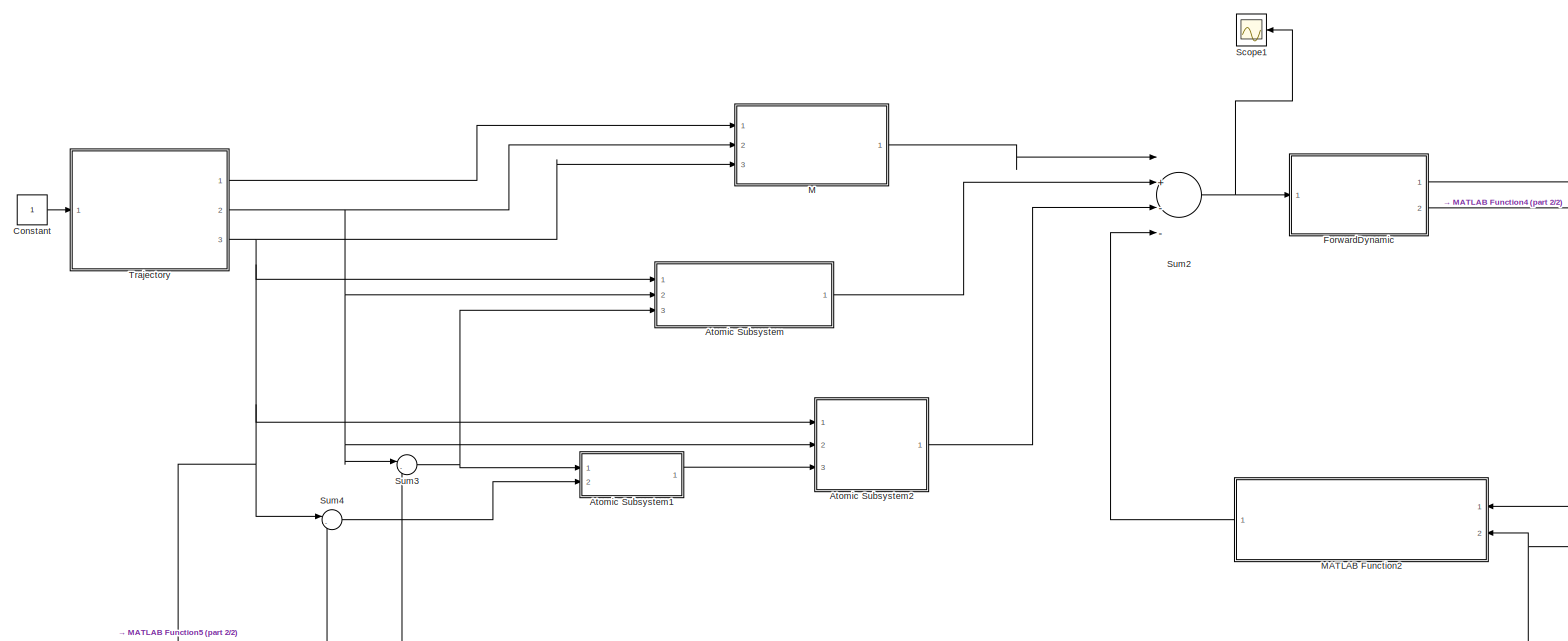
[diagram: root canvas - part 1/2, most of the canvas]
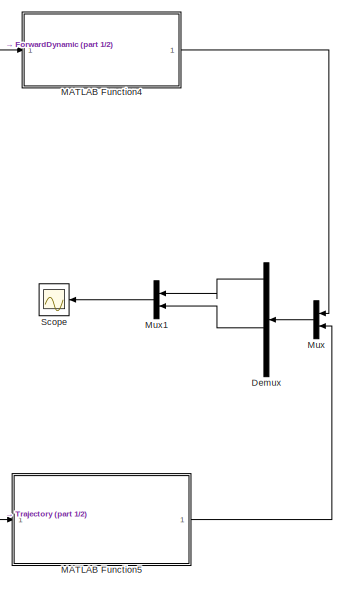
[diagram: root canvas - part 2/2, middle right region]
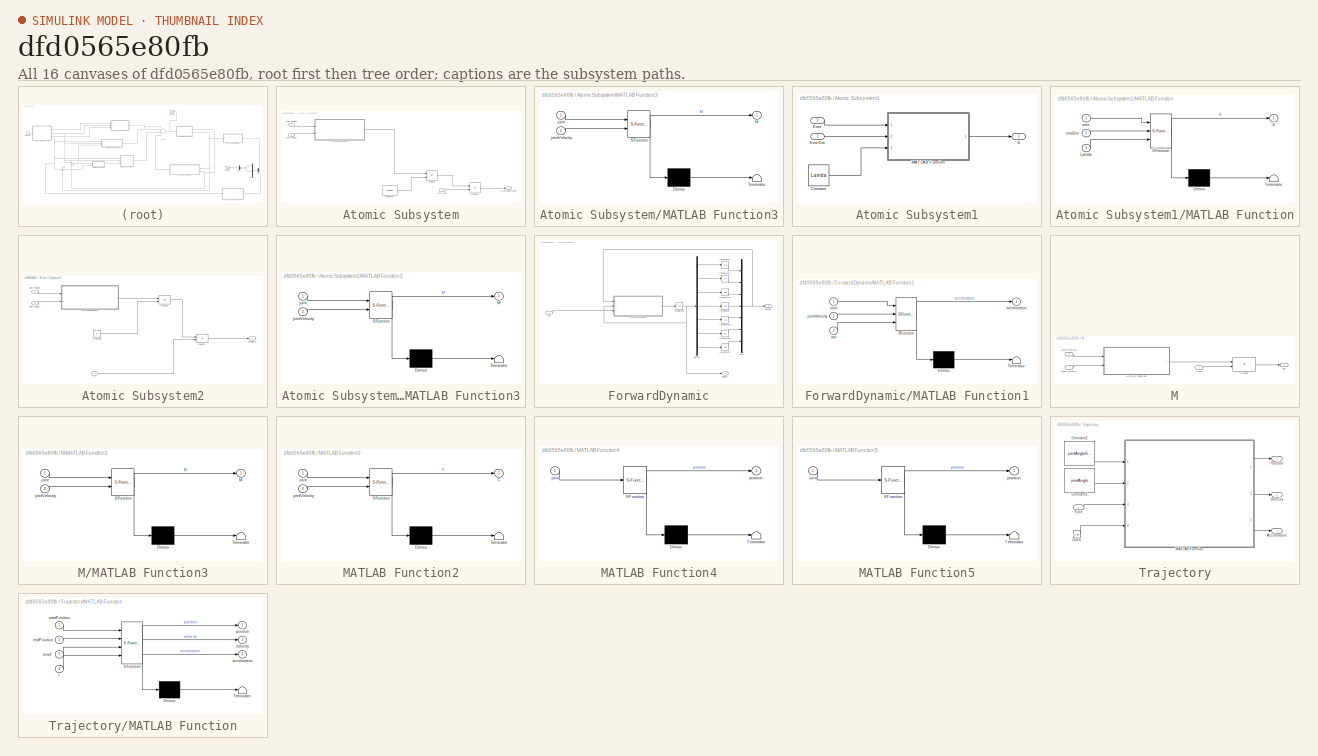
[diagram: thumbnail index - all 16 canvases of the model, root first then tree order]
MODEL slx_dfd0565e80fb
KIND model
CONFIG AbsTol = auto
CONFIG EnableMultiTasking = off
CONFIG FixedStep = 1
CONFIG MaxStep = auto
CONFIG MinStep = auto
CONFIG RelTol = 0.1
CONFIG SampleTimeConstraint = Unconstrained
CONFIG Solver = VariableStepAuto
CONFIG SolverName = VariableStepAuto
CONFIG StartTime = 0.0
CONFIG StopTime = 1
BLOCK [SubSystem] Atomic Subsystem
  Ports = [3, 1]
  RequestExecContextInheritance = off
  TreatAsAtomicUnit = on
BLOCK [Constant] Atomic Subsystem/Constant
  Value = Lamda
BLOCK [Inport] Atomic Subsystem/Error dot
  IconDisplay = Port number
  Port = 3
BLOCK [Inport] Atomic Subsystem/Joint Position
  IconDisplay = Port number
BLOCK [Inport] Atomic Subsystem/Joint Velocity
  IconDisplay = Port number
  Port = 2
BLOCK [SubSystem] Atomic Subsystem/MATLAB Function3
  ErrorFcn = Stateflow.Translate.translate
  PermitHierarchicalResolution = ExplicitOnly
  Ports = [2, 1]
  RequestExecContextInheritance = off
  SFBlockType = MATLAB Function
  TreatAsAtomicUnit = on
BLOCK [Demux] Atomic Subsystem/MATLAB Function3/ Demux 
  Outputs = 1
  Ports = [1, 1]
BLOCK [S-Function] Atomic Subsystem/MATLAB Function3/ SFunction 
  EnableBusSupport = on
  FunctionName = sf_sfun
  PortCounts = [2 2]
  Ports = [2, 2]
  SFcnIsStateOwnerBlock = off
  SFunctionDeploymentMode = off
  Tag = Stateflow S-Function BackStepping 2
BLOCK [Terminator] Atomic Subsystem/MATLAB Function3/ Terminator 
BLOCK [Outport] Atomic Subsystem/MATLAB Function3/M
  IconDisplay = Port number
BLOCK [Inport] Atomic Subsystem/MATLAB Function3/joint
  IconDisplay = Port number
BLOCK [Inport] Atomic Subsystem/MATLAB Function3/jointVelocity
  IconDisplay = Port number
  Port = 2
BLOCK [Outport] Atomic Subsystem/MLamdaErrorDot
  IconDisplay = Port number
BLOCK [Product] Atomic Subsystem/Product
  InputSameDT = off
  Multiplication = Matrix(*)
  OutDataTypeStr = Inherit: Inherit via internal rule
  Ports = [2, 1]
  RndMeth = Floor
  SaturateOnIntegerOverflow = off
BLOCK [Product] Atomic Subsystem/Product1
  InputSameDT = off
  Multiplication = Matrix(*)
  OutDataTypeStr = Inherit: Inherit via internal rule
  Ports = [2, 1]
  RndMeth = Floor
  SaturateOnIntegerOverflow = off
BLOCK [SubSystem] Atomic Subsystem1
  Ports = [2, 1]
  RequestExecContextInheritance = off
  TreatAsAtomicUnit = on
BLOCK [Constant] Atomic Subsystem1/Constant
  Value = Lamda
BLOCK [Inport] Atomic Subsystem1/Error
  IconDisplay = Port number
  Port = 2
BLOCK [Inport] Atomic Subsystem1/Error Dot
  IconDisplay = Port number
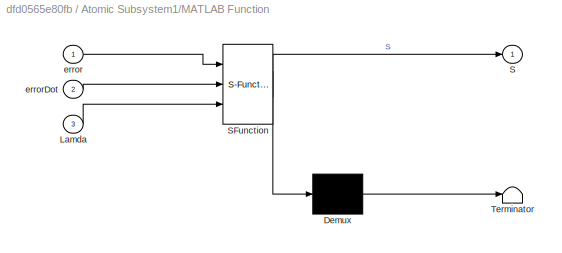
BLOCK [SubSystem] Atomic Subsystem1/MATLAB Function
  ErrorFcn = Stateflow.Translate.translate
  PermitHierarchicalResolution = ExplicitOnly
  Ports = [3, 1]
  RequestExecContextInheritance = off
  SFBlockType = MATLAB Function
  TreatAsAtomicUnit = on
BLOCK [Demux] Atomic Subsystem1/MATLAB Function/ Demux 
  Outputs = 1
  Ports = [1, 1]
BLOCK [S-Function] Atomic Subsystem1/MATLAB Function/ SFunction 
  EnableBusSupport = on
  FunctionName = sf_sfun
  PortCounts = [3 2]
  Ports = [3, 2]
  SFcnIsStateOwnerBlock = off
  SFunctionDeploymentMode = off
  Tag = Stateflow S-Function BackStepping 9
BLOCK [Terminator] Atomic Subsystem1/MATLAB Function/ Terminator 
BLOCK [Inport] Atomic Subsystem1/MATLAB Function/Lamda
  IconDisplay = Port number
  Port = 3
BLOCK [Outport] Atomic Subsystem1/MATLAB Function/S
  IconDisplay = Port number
BLOCK [Inport] Atomic Subsystem1/MATLAB Function/error
  IconDisplay = Port number
BLOCK [Inport] Atomic Subsystem1/MATLAB Function/errorDot
  IconDisplay = Port number
  Port = 2
BLOCK [Outport] Atomic Subsystem1/S
  IconDisplay = Port number
BLOCK [SubSystem] Atomic Subsystem2
  Ports = [3, 1]
  RequestExecContextInheritance = off
  TreatAsAtomicUnit = on
BLOCK [Constant] Atomic Subsystem2/Constant
  Value = K
BLOCK [Inport] Atomic Subsystem2/Joint Position
  IconDisplay = Port number
BLOCK [Inport] Atomic Subsystem2/Joint Velocity
  IconDisplay = Port number
  Port = 2
BLOCK [SubSystem] Atomic Subsystem2/MATLAB Function3
  ErrorFcn = Stateflow.Translate.translate
  PermitHierarchicalResolution = ExplicitOnly
  Ports = [2, 1]
  RequestExecContextInheritance = off
  SFBlockType = MATLAB Function
  TreatAsAtomicUnit = on
BLOCK [Demux] Atomic Subsystem2/MATLAB Function3/ Demux 
  Outputs = 1
  Ports = [1, 1]
BLOCK [S-Function] Atomic Subsystem2/MATLAB Function3/ SFunction 
  EnableBusSupport = on
  FunctionName = sf_sfun
  PortCounts = [2 2]
  Ports = [2, 2]
  SFcnIsStateOwnerBlock = off
  SFunctionDeploymentMode = off
  Tag = Stateflow S-Function BackStepping 5
BLOCK [Terminator] Atomic Subsystem2/MATLAB Function3/ Terminator 
BLOCK [Outport] Atomic Subsystem2/MATLAB Function3/M
  IconDisplay = Port number
BLOCK [Inport] Atomic Subsystem2/MATLAB Function3/joint
  IconDisplay = Port number
BLOCK [Inport] Atomic Subsystem2/MATLAB Function3/jointVelocity
  IconDisplay = Port number
  Port = 2
BLOCK [Outport] Atomic Subsystem2/MKsing(s)
  IconDisplay = Port number
BLOCK [Product] Atomic Subsystem2/Product
  InputSameDT = off
  Multiplication = Matrix(*)
  OutDataTypeStr = Inherit: Inherit via internal rule
  Ports = [2, 1]
  RndMeth = Floor
  SaturateOnIntegerOverflow = off
BLOCK [Product] Atomic Subsystem2/Product1
  InputSameDT = off
  Multiplication = Matrix(*)
  OutDataTypeStr = Inherit: Inherit via internal rule
  Ports = [2, 1]
  RndMeth = Floor
  SaturateOnIntegerOverflow = off
BLOCK [Inport] Atomic Subsystem2/S
  IconDisplay = Port number
  Port = 3
BLOCK [Constant] Constant
BLOCK [Demux] Demux
  DisplayOption = bar
  Outputs = 6
  Ports = [1, 6]
BLOCK [SubSystem] ForwardDynamic
  Ports = [1, 2]
  RequestExecContextInheritance = off
  TreatAsAtomicUnit = on
BLOCK [Demux] ForwardDynamic/Demux
  DisplayOption = bar
  Outputs = 7
  Ports = [1, 7]
BLOCK [Integrator] ForwardDynamic/Integrator
  Ports = [1, 1]
BLOCK [Integrator] ForwardDynamic/Integrator1
  InitialCondition = jointAngleStart(1)
  Ports = [1, 1]
BLOCK [Integrator] ForwardDynamic/Integrator2
  InitialCondition = jointAngleStart(2)
  Ports = [1, 1]
BLOCK [Integrator] ForwardDynamic/Integrator3
  InitialCondition = jointAngleStart(3)
  Ports = [1, 1]
BLOCK [Integrator] ForwardDynamic/Integrator4
  InitialCondition = jointAngleStart(4)
  Ports = [1, 1]
BLOCK [Integrator] ForwardDynamic/Integrator5
  InitialCondition = jointAngleStart(5)
  Ports = [1, 1]
BLOCK [Integrator] ForwardDynamic/Integrator6
  InitialCondition = jointAngleStart(6)
  Ports = [1, 1]
BLOCK [Integrator] ForwardDynamic/Integrator7
  InitialCondition = jointAngleStart(7)
  Ports = [1, 1]
BLOCK [SubSystem] ForwardDynamic/MATLAB Function1
  ErrorFcn = Stateflow.Translate.translate
  PermitHierarchicalResolution = ExplicitOnly
  Ports = [3, 1]
  RequestExecContextInheritance = off
  SFBlockType = MATLAB Function
  TreatAsAtomicUnit = on
BLOCK [Demux] ForwardDynamic/MATLAB Function1/ Demux 
  Outputs = 1
  Ports = [1, 1]
BLOCK [S-Function] ForwardDynamic/MATLAB Function1/ SFunction 
  EnableBusSupport = on
  FunctionName = sf_sfun
  PortCounts = [3 2]
  Ports = [3, 2]
  SFcnIsStateOwnerBlock = off
  SFunctionDeploymentMode = off
  Tag = Stateflow S-Function BackStepping 4
BLOCK [Terminator] ForwardDynamic/MATLAB Function1/ Terminator 
BLOCK [Outport] ForwardDynamic/MATLAB Function1/acceleration
  IconDisplay = Port number
BLOCK [Inport] ForwardDynamic/MATLAB Function1/joint
  IconDisplay = Port number
BLOCK [Inport] ForwardDynamic/MATLAB Function1/jointVelocity
  IconDisplay = Port number
  Port = 2
BLOCK [Inport] ForwardDynamic/MATLAB Function1/tau
  IconDisplay = Port number
  Port = 3
BLOCK [Mux] ForwardDynamic/Mux
  DisplayOption = bar
  Inputs = 7
  Ports = [7, 1]
BLOCK [Outport] ForwardDynamic/Position
  IconDisplay = Port number
  Port = 2
BLOCK [Inport] ForwardDynamic/Tau
  IconDisplay = Port number
BLOCK [Outport] ForwardDynamic/Velocity
  IconDisplay = Port number
BLOCK [SubSystem] M
  Ports = [3, 1]
  RequestExecContextInheritance = off
  TreatAsAtomicUnit = on
BLOCK [Inport] M/Accel 
  IconDisplay = Port number
BLOCK [Inport] M/Joint Position
  IconDisplay = Port number
  Port = 3
BLOCK [Inport] M/Joint Velocity
  IconDisplay = Port number
  Port = 2
BLOCK [SubSystem] M/MATLAB Function3
  ErrorFcn = Stateflow.Translate.translate
  PermitHierarchicalResolution = ExplicitOnly
  Ports = [2, 1]
  RequestExecContextInheritance = off
  SFBlockType = MATLAB Function
  TreatAsAtomicUnit = on
BLOCK [Demux] M/MATLAB Function3/ Demux 
  Outputs = 1
  Ports = [1, 1]
BLOCK [S-Function] M/MATLAB Function3/ SFunction 
  EnableBusSupport = on
  FunctionName = sf_sfun
  PortCounts = [2 2]
  Ports = [2, 2]
  SFcnIsStateOwnerBlock = off
  SFunctionDeploymentMode = off
  Tag = Stateflow S-Function BackStepping 1
BLOCK [Terminator] M/MATLAB Function3/ Terminator 
BLOCK [Outport] M/MATLAB Function3/M
  IconDisplay = Port number
BLOCK [Inport] M/MATLAB Function3/joint
  IconDisplay = Port number
BLOCK [Inport] M/MATLAB Function3/jointVelocity
  IconDisplay = Port number
  Port = 2
BLOCK [Product] M/Product
  InputSameDT = off
  Multiplication = Matrix(*)
  OutDataTypeStr = Inherit: Inherit via internal rule
  Ports = [2, 1]
  RndMeth = Floor
  SaturateOnIntegerOverflow = off
BLOCK [Outport] M/Tau
  IconDisplay = Port number
BLOCK [SubSystem] MATLAB Function2
  ErrorFcn = Stateflow.Translate.translate
  PermitHierarchicalResolution = ExplicitOnly
  Ports = [2, 1]
  RequestExecContextInheritance = off
  SFBlockType = MATLAB Function
  TreatAsAtomicUnit = on
BLOCK [Demux] MATLAB Function2/ Demux 
  Outputs = 1
  Ports = [1, 1]
BLOCK [S-Function] MATLAB Function2/ SFunction 
  EnableBusSupport = on
  FunctionName = sf_sfun
  PortCounts = [2 2]
  Ports = [2, 2]
  SFcnIsStateOwnerBlock = off
  SFunctionDeploymentMode = off
  Tag = Stateflow S-Function BackStepping 3
BLOCK [Terminator] MATLAB Function2/ Terminator 
BLOCK [Outport] MATLAB Function2/C
  IconDisplay = Port number
BLOCK [Inport] MATLAB Function2/joint
  IconDisplay = Port number
BLOCK [Inport] MATLAB Function2/jointVelocity
  IconDisplay = Port number
  Port = 2
BLOCK [SubSystem] MATLAB Function4
  ErrorFcn = Stateflow.Translate.translate
  PermitHierarchicalResolution = ExplicitOnly
  Ports = [1, 1]
  RequestExecContextInheritance = off
  SFBlockType = MATLAB Function
  TreatAsAtomicUnit = on
BLOCK [Demux] MATLAB Function4/ Demux 
  Outputs = 1
  Ports = [1, 1]
BLOCK [S-Function] MATLAB Function4/ SFunction 
  EnableBusSupport = on
  FunctionName = sf_sfun
  PortCounts = [1 2]
  Ports = [1, 2]
  SFcnIsStateOwnerBlock = off
  SFunctionDeploymentMode = off
  Tag = Stateflow S-Function BackStepping 6
BLOCK [Terminator] MATLAB Function4/ Terminator 
BLOCK [Inport] MATLAB Function4/joint
  IconDisplay = Port number
BLOCK [Outport] MATLAB Function4/position
  IconDisplay = Port number
BLOCK [SubSystem] MATLAB Function5
  ErrorFcn = Stateflow.Translate.translate
  PermitHierarchicalResolution = ExplicitOnly
  Ports = [1, 1]
  RequestExecContextInheritance = off
  SFBlockType = MATLAB Function
  TreatAsAtomicUnit = on
BLOCK [Demux] MATLAB Function5/ Demux 
  Outputs = 1
  Ports = [1, 1]
BLOCK [S-Function] MATLAB Function5/ SFunction 
  EnableBusSupport = on
  FunctionName = sf_sfun
  PortCounts = [1 2]
  Ports = [1, 2]
  SFcnIsStateOwnerBlock = off
  SFunctionDeploymentMode = off
  Tag = Stateflow S-Function BackStepping 8
BLOCK [Terminator] MATLAB Function5/ Terminator 
BLOCK [Inport] MATLAB Function5/joint
  IconDisplay = Port number
BLOCK [Outport] MATLAB Function5/position
  IconDisplay = Port number
BLOCK [Mux] Mux
  DisplayOption = bar
  Inputs = 2
  Ports = [2, 1]
BLOCK [Mux] Mux1
  DisplayOption = bar
  Inputs = 2
  Ports = [2, 1]
BLOCK [Scope] Scope
  Floating = off
  NumInputPorts = 1
  Ports = [1]
  ScopeSpecificationString = Simulink.scopes.TimeScopeBlockCfg('CurrentConfiguration', extmgr.ConfigurationSet(extmgr.Configuration('Core','General UI',true,'FigureColor',[1 1 1]),extmgr.Configuration('Core','Source UI',true),extmgr.Configuration('Sources','WiredSimulink',true),extmgr.Configuration('Visuals','Time Domain',true,'SerializedDisplays',{struct('MinYLimReal','0.54704','MaxYLimReal','0.71941','YLabelReal','','MinYLi...<+1864ch>
BLOCK [Scope] Scope1
  Floating = off
  NumInputPorts = 1
  Ports = [1]
  ScopeSpecificationString = Simulink.scopes.TimeScopeBlockCfg('CurrentConfiguration', extmgr.ConfigurationSet(extmgr.Configuration('Core','General UI',true),extmgr.Configuration('Core','Source UI',true),extmgr.Configuration('Sources','WiredSimulink',true,'DataLoggingVariableName','ScopeData1'),extmgr.Configuration('Visuals','Time Domain',true,'SerializedDisplays',{struct('MinYLimReal','-772174.0068','MaxYLimReal','135457.792...<+1684ch>
BLOCK [Sum] Sum2
  InputSameDT = off
  Inputs = |+--+
  OutDataTypeStr = Inherit: Inherit via internal rule
  Ports = [4, 1]
  SaturateOnIntegerOverflow = off
BLOCK [Sum] Sum3
  IconShape = round
  InputSameDT = off
  Inputs = |-+
  OutDataTypeStr = Inherit: Inherit via internal rule
  Ports = [2, 1]
  SaturateOnIntegerOverflow = off
BLOCK [Sum] Sum4
  IconShape = round
  InputSameDT = off
  Inputs = |-+
  OutDataTypeStr = Inherit: Inherit via internal rule
  Ports = [2, 1]
  SaturateOnIntegerOverflow = off
BLOCK [SubSystem] Trajectory
  Ports = [1, 3]
  RequestExecContextInheritance = off
  TreatAsAtomicUnit = on
BLOCK [Outport] Trajectory/Acceleration
  IconDisplay = Port number
BLOCK [Clock] Trajectory/Clock
BLOCK [Constant] Trajectory/Constant1
  Value = jointAngle
BLOCK [Constant] Trajectory/Constant2
  Value = jointAngleStart
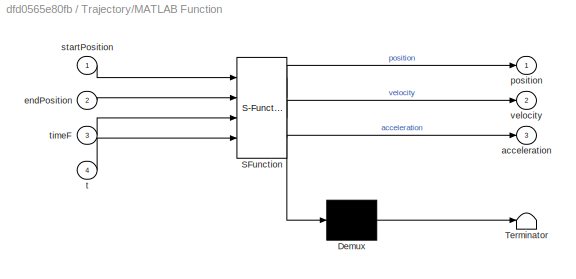
BLOCK [SubSystem] Trajectory/MATLAB Function
  ErrorFcn = Stateflow.Translate.translate
  PermitHierarchicalResolution = ExplicitOnly
  Ports = [4, 3]
  RequestExecContextInheritance = off
  SFBlockType = MATLAB Function
  TreatAsAtomicUnit = on
BLOCK [Demux] Trajectory/MATLAB Function/ Demux 
  Outputs = 1
  Ports = [1, 1]
BLOCK [S-Function] Trajectory/MATLAB Function/ SFunction 
  EnableBusSupport = on
  FunctionName = sf_sfun
  PortCounts = [4 4]
  Ports = [4, 4]
  SFcnIsStateOwnerBlock = off
  SFunctionDeploymentMode = off
  Tag = Stateflow S-Function BackStepping 7
BLOCK [Terminator] Trajectory/MATLAB Function/ Terminator 
BLOCK [Outport] Trajectory/MATLAB Function/acceleration
  IconDisplay = Port number
  Port = 3
BLOCK [Inport] Trajectory/MATLAB Function/endPosition
  IconDisplay = Port number
  Port = 2
BLOCK [Outport] Trajectory/MATLAB Function/position
  IconDisplay = Port number
BLOCK [Inport] Trajectory/MATLAB Function/startPosition
  IconDisplay = Port number
BLOCK [Inport] Trajectory/MATLAB Function/t
  IconDisplay = Port number
  Port = 4
BLOCK [Inport] Trajectory/MATLAB Function/timeF
  IconDisplay = Port number
  Port = 3
BLOCK [Outport] Trajectory/MATLAB Function/velocity
  IconDisplay = Port number
  Port = 2
BLOCK [Outport] Trajectory/Position
  IconDisplay = Port number
  Port = 3
BLOCK [Inport] Trajectory/Time
  IconDisplay = Port number
BLOCK [Outport] Trajectory/Velocity
  IconDisplay = Port number
  Port = 2
LINE Atomic Subsystem/Constant:1 -> Atomic Subsystem/Product:2
LINE Atomic Subsystem/Error dot:1 -> Atomic Subsystem/Product1:2
LINE Atomic Subsystem/Joint Position:1 -> Atomic Subsystem/MATLAB Function3:1
LINE Atomic Subsystem/Joint Velocity:1 -> Atomic Subsystem/MATLAB Function3:2
LINE Atomic Subsystem/MATLAB Function3:1 -> Atomic Subsystem/Product:1
LINE Atomic Subsystem/Product1:1 -> Atomic Subsystem/MLamdaErrorDot:1
LINE Atomic Subsystem/Product:1 -> Atomic Subsystem/Product1:1
LINE Atomic Subsystem1/Constant:1 -> Atomic Subsystem1/MATLAB Function:3
LINE Atomic Subsystem1/Error Dot:1 -> Atomic Subsystem1/MATLAB Function:2
LINE Atomic Subsystem1/Error:1 -> Atomic Subsystem1/MATLAB Function:1
LINE Atomic Subsystem1/MATLAB Function:1 -> Atomic Subsystem1/S:1
LINE Atomic Subsystem1:1 -> Atomic Subsystem2:3
LINE Atomic Subsystem2/Constant:1 -> Atomic Subsystem2/Product:2
LINE Atomic Subsystem2/Joint Position:1 -> Atomic Subsystem2/MATLAB Function3:1
LINE Atomic Subsystem2/Joint Velocity:1 -> Atomic Subsystem2/MATLAB Function3:2
LINE Atomic Subsystem2/MATLAB Function3:1 -> Atomic Subsystem2/Product:1
LINE Atomic Subsystem2/Product1:1 -> Atomic Subsystem2/MKsing(s):1
LINE Atomic Subsystem2/Product:1 -> Atomic Subsystem2/Product1:1
LINE Atomic Subsystem2/S:1 -> Atomic Subsystem2/Product1:2
LINE Atomic Subsystem2:1 -> Sum2:3
LINE Atomic Subsystem:1 -> Sum2:2
LINE Constant:1 -> Trajectory:1
LINE Demux:1 -> Mux1:1
LINE Demux:4 -> Mux1:2
LINE ForwardDynamic/Demux:1 -> ForwardDynamic/Integrator1:1
LINE ForwardDynamic/Demux:2 -> ForwardDynamic/Integrator2:1
LINE ForwardDynamic/Demux:3 -> ForwardDynamic/Integrator3:1
LINE ForwardDynamic/Demux:4 -> ForwardDynamic/Integrator4:1
LINE ForwardDynamic/Demux:5 -> ForwardDynamic/Integrator5:1
LINE ForwardDynamic/Demux:6 -> ForwardDynamic/Integrator6:1
LINE ForwardDynamic/Demux:7 -> ForwardDynamic/Integrator7:1
LINE ForwardDynamic/Integrator1:1 -> ForwardDynamic/Mux:1
LINE ForwardDynamic/Integrator2:1 -> ForwardDynamic/Mux:2
LINE ForwardDynamic/Integrator3:1 -> ForwardDynamic/Mux:3
LINE ForwardDynamic/Integrator4:1 -> ForwardDynamic/Mux:4
LINE ForwardDynamic/Integrator5:1 -> ForwardDynamic/Mux:5
LINE ForwardDynamic/Integrator6:1 -> ForwardDynamic/Mux:6
LINE ForwardDynamic/Integrator7:1 -> ForwardDynamic/Mux:7
NET ForwardDynamic/Integrator:1 -> ForwardDynamic/Demux:1, ForwardDynamic/MATLAB Function1:2, ForwardDynamic/Velocity:1
LINE ForwardDynamic/MATLAB Function1:1 -> ForwardDynamic/Integrator:1
NET ForwardDynamic/Mux:1 -> ForwardDynamic/MATLAB Function1:1, ForwardDynamic/Position:1
LINE ForwardDynamic/Tau:1 -> ForwardDynamic/MATLAB Function1:3
NET ForwardDynamic:1 -> MATLAB Function2:2, Sum3:2
NET ForwardDynamic:2 -> MATLAB Function2:1, MATLAB Function4:1, Sum4:2
LINE M/Accel :1 -> M/Product:2
LINE M/Joint Position:1 -> M/MATLAB Function3:1
LINE M/Joint Velocity:1 -> M/MATLAB Function3:2
LINE M/MATLAB Function3:1 -> M/Product:1
LINE M/Product:1 -> M/Tau:1
LINE M:1 -> Sum2:1
LINE MATLAB Function2:1 -> Sum2:4
LINE MATLAB Function4:1 -> Mux:1
LINE MATLAB Function5:1 -> Mux:2
LINE Mux1:1 -> Scope:1
LINE Mux:1 -> Demux:1
NET Sum2:1 -> ForwardDynamic:1, Scope1:1
NET Sum3:1 -> Atomic Subsystem1:1, Atomic Subsystem:3
LINE Sum4:1 -> Atomic Subsystem1:2
LINE Trajectory/Clock:1 -> Trajectory/MATLAB Function:4
LINE Trajectory/Constant1:1 -> Trajectory/MATLAB Function:2
LINE Trajectory/Constant2:1 -> Trajectory/MATLAB Function:1
LINE Trajectory/MATLAB Function:1 -> Trajectory/Position:1
LINE Trajectory/MATLAB Function:2 -> Trajectory/Velocity:1
LINE Trajectory/MATLAB Function:3 -> Trajectory/Acceleration:1
LINE Trajectory/Time:1 -> Trajectory/MATLAB Function:3
LINE Trajectory:1 -> M:1
NET Trajectory:2 -> Atomic Subsystem2:2, Atomic Subsystem:2, M:2, Sum3:1
NET Trajectory:3 -> Atomic Subsystem2:1, Atomic Subsystem:1, M:3, MATLAB Function5:1, Sum4:1
note: NET lines group one-source signal fan-out (src -> all destinations, sorted); 1:1 wires keep LINE
CHART M/MATLAB Function3 states=1 transitions=1
  STATE_LABEL 'eML_blk_kernel()'
  STATE_LABEL 'SCRIPT:\nfunction M = MassMatrix(joint, jointVelocity)\n    % Robot Frame    \n    robotData = RobotParam;\n    \n    % Mass Center\n    Pc = zeros(3,7);\n    Pc(:, 1) = [ -3.94e-06;  0.001804699;  -0.0748562];\n    Pc(:, 2) = [2.2339e-05;   0.07515658;  -0.0301928];\n    Pc(:, 3) = [-2.234e-05;  0.009582299;  -0.0966774];\n    Pc(:, 4) = [-3.269e-05;   0.09546485;  -0.0287837];\n    Pc(:, 5) = [6.4423e-05; ...<+1459ch>'  <repeated x3 — deduplicated; at blocks: MATLAB Function3>
CHART Atomic Subsystem/MATLAB Function3 states=1 transitions=1
  STATE_LABEL 'eML_blk_kernel()'
CHART MATLAB Function2 states=1 transitions=1
  STATE_LABEL 'eML_blk_kernel()'
  STATE_LABEL 'SCRIPT:\nfunction C = SystemCompensation(joint, jointVelocity)\n    % Robot Frame\n    acceleration = zeros(size(jointVelocity));\n    \n    robotData = RobotParam;\n    \n    % Mass Center\n    Pc = zeros(3,7);\n    Pc(:, 1) = [ -3.94e-06;  0.001804699;  -0.0748562];\n    Pc(:, 2) = [2.2339e-05;   0.07515658;  -0.0301928];\n    Pc(:, 3) = [-2.234e-05;  0.009582299;  -0.0966774];\n    Pc(:, 4) = [-3.269e-05; ...<+1288ch>'
CHART ForwardDynamic/MATLAB Function1 states=1 transitions=1
  STATE_LABEL 'eML_blk_kernel()'
  STATE_LABEL 'SCRIPT:\nfunction acceleration = ForwardDynamicSolver(joint, jointVelocity, tau)\n    % Robot Frame\n    acceleration = zeros(7, 1);\n    \n    robotData = RobotParam;\n    \n    % Mass Center\n    Pc = zeros(3,7);\n    Pc(:, 1) = [ -3.94e-06;  0.001804699;  -0.0748562];\n    Pc(:, 2) = [2.2339e-05;   0.07515658;  -0.0301928];\n    Pc(:, 3) = [-2.234e-05;  0.009582299;  -0.0966774];\n    Pc(:, 4) = [-3.269e-0...<+1564ch>'
CHART Atomic Subsystem2/MATLAB Function3 states=1 transitions=1
  STATE_LABEL 'eML_blk_kernel()'
CHART MATLAB Function4 states=1 transitions=1
  STATE_LABEL 'eML_blk_kernel()'
  STATE_LABEL 'SCRIPT:\nfunction position = ForwardKinematic(joint)\n    position = [0,0,0];\n    frame = zeros(4,4,7);\n    mRobotParam = RobotParam;\n            \n    frame(:, :, 1) = mRobotParam.mJointReferentiel(:, :, 1) * rotm2tform(rotz(joint(1) + mRobotParam.mJointOffset(1)));\n    \n    for n = 2:mRobotParam.mActuatorCount\n        frame(:, :, n) = frame(:, :, n - 1) * mRobotParam.mJointReferentiel(:, :, n) * ro...<+138ch>'
CHART Trajectory/MATLAB Function states=1 transitions=1
  STATE_LABEL 'eML_blk_kernel()'
  STATE_LABEL 'SCRIPT:\nfunction  [position, velocity, acceleration] = Trajectory(startPosition, endPosition, timeF, t)\n\n    position = zeros(size(startPosition));\n    velocity = zeros(size(startPosition));\n    acceleration = zeros(size(startPosition));\n    \n    if t >= timeF\n        t = timeF;\n    end\n\n    for i = 1:length(startPosition)    \n        S      = [startPosition(i); 0; 0; endPosition(i); 0; 0];\n      ...<+516ch>'
CHART MATLAB Function5 states=1 transitions=1
  STATE_LABEL 'eML_blk_kernel()'
  STATE_LABEL 'SCRIPT:\nfunction position = ForwardKinematic(joint)\n    position = [0,0,0];\n    frame = zeros(4,4,7);\n    mRobotParam = RobotParam;\n            \n    frame(:, :, 1) = mRobotParam.mJointReferentiel(:, :, 1) * rotm2tform(rotz(joint(1) + mRobotParam.mJointOffset(1)));\n    \n    for n = 2:mRobotParam.mActuatorCount\n        frame(:, :, n) = frame(:, :, n - 1) * mRobotParam.mJointReferentiel(:, :, n) * ro...<+138ch>'
CHART Atomic Subsystem1/MATLAB Function states=1 transitions=1
  STATE_LABEL 'eML_blk_kernel()'
  STATE_LABEL 'SCRIPT:\nfunction S = ComputeS(error, errorDot, Lamda)\n    S = Lamda*error + errorDot;\n'
